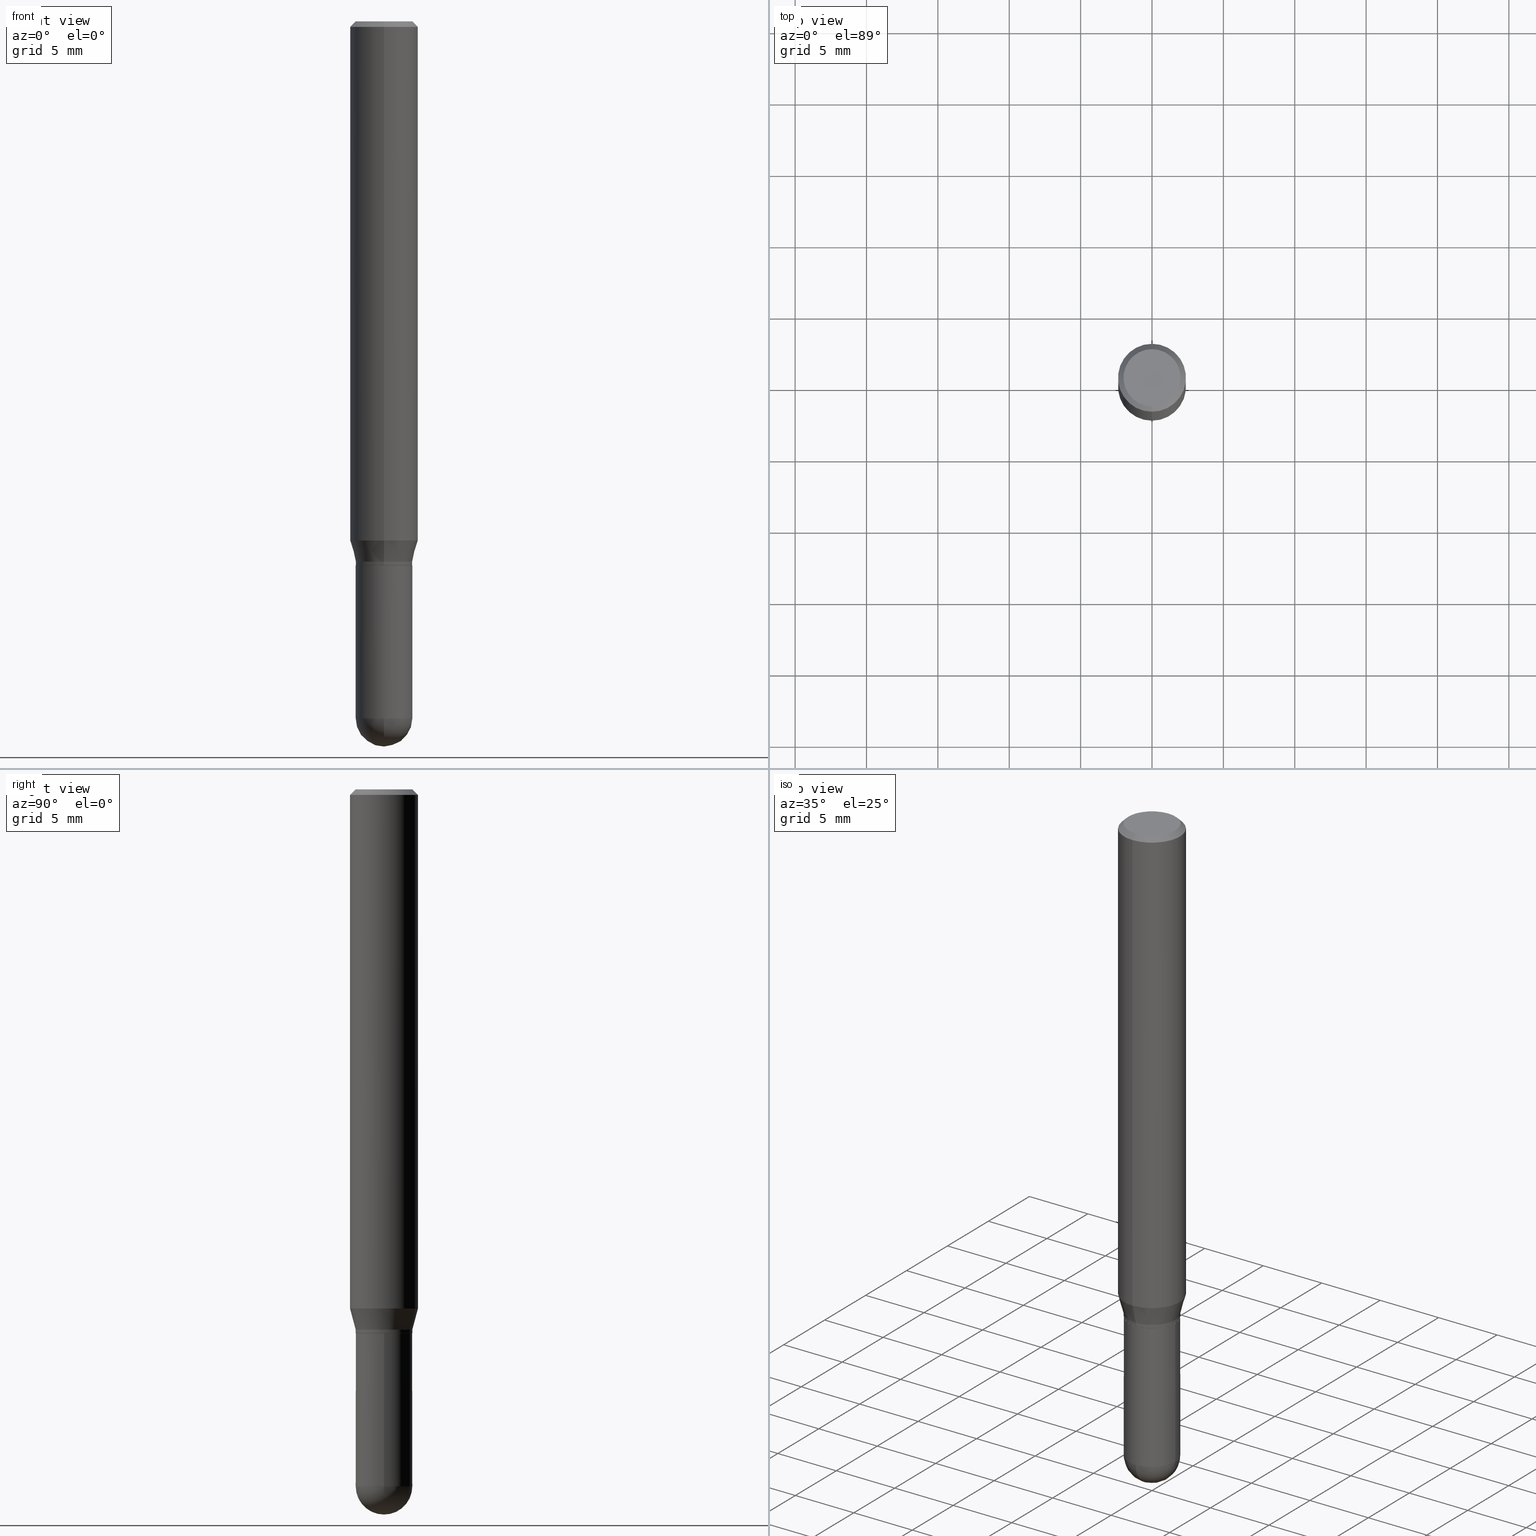
[diagram: canonical four-view strip — front | top / right | iso, engineering-drawing reading convention]
A machine part, canonical four-view strip (front | top / right | iso — engineering-drawing reading convention). The complete STEP part file that produces these views, byte-faithful:
ISO-10303-21;
HEADER;
FILE_DESCRIPTION (( 'STEP AP203' ),
    '1' );
FILE_NAME ('39520.STEP',
    '2024-03-08T12:52:01',
    ( '' ),
    ( '' ),
    'SwSTEP 2.0',
    'SolidWorks 2023',
    '' );
FILE_SCHEMA (( 'CONFIG_CONTROL_DESIGN' ));
ENDSEC;

DATA;
#1 = CIRCLE ( 'NONE', #184, 0.07810000000000000275 ) ;
#2 = AXIS2_PLACEMENT_3D ( 'NONE', #38, #396, #156 ) ;
#3 = EDGE_CURVE ( 'NONE', #70, #72, #26, .T. ) ;
#4 = DIRECTION ( 'NONE',  ( -2.445022562880343100E-29, 3.492120384654201603E-15, 1.000000000000000000 ) ) ;
#5 = ORIENTED_EDGE ( 'NONE', *, *, #109, .F. ) ;
#6 = DIRECTION ( 'NONE',  ( -6.982962677686265922E-15, -1.000000000000000000, 2.913971193241880372E-15 ) ) ;
#7 = VERTEX_POINT ( 'NONE', #489 ) ;
#8 =( LENGTH_UNIT ( ) NAMED_UNIT ( * ) SI_UNIT ( $, .METRE. ) );
#9 = VERTEX_POINT ( 'NONE', #450 ) ;
#10 = EDGE_CURVE ( 'NONE', #356, #72, #51, .T. ) ;
#11 = VECTOR ( 'NONE', #499, 39.37007874015748143 ) ;
#12 = ORIENTED_EDGE ( 'NONE', *, *, #224, .F. ) ;
#13 = MANIFOLD_SOLID_BREP ( 'Body-Move/Copy2[2]', #476 ) ;
#14 = CARTESIAN_POINT ( 'NONE',  ( 4.693267649888723399E-29, -6.719842476623982487E-15, -1.921900000000000164 ) ) ;
#15 = ORIENTED_EDGE ( 'NONE', *, *, #241, .F. ) ;
#16 = CARTESIAN_POINT ( 'NONE',  ( 5.499083108677934443E-16, 0.07875000000000001443, -2.640559158870569216E-16 ) ) ;
#17 = CIRCLE ( 'NONE', #302, 0.07810000000000000275 ) ;
#18 =( CONVERSION_BASED_UNIT ( 'INCH', #358 ) LENGTH_UNIT ( ) NAMED_UNIT ( #484 ) );
#19 = EDGE_CURVE ( 'NONE', #39, #9, #479, .T. ) ;
#20 = CONICAL_SURFACE ( 'NONE', #202, 0.07809999999999964193, 0.2617993877991497409 ) ;
#21 = CARTESIAN_POINT ( 'NONE',  ( 3.666311333039075664E-29, -5.236434516788975357E-15, -1.499500000000000277 ) ) ;
#22 = CARTESIAN_POINT ( 'NONE',  ( -6.546527510330523012E-16, -0.09375000000000500988, -1.431593404861545515 ) ) ;
#23 = CALENDAR_DATE ( 2024, 8, 3 ) ;
#24 = DIRECTION ( 'NONE',  ( 2.445022562880343100E-29, -3.492120384654201603E-15, -1.000000000000000000 ) ) ;
#25 = ADVANCED_FACE ( 'NONE', ( #131 ), #325, .F. ) ;
#26 = CIRCLE ( 'NONE', #293, 0.07809999999999991949 ) ;
#27 = CARTESIAN_POINT ( 'NONE',  ( 5.549338766286741579E-16, 0.07809999999999467368, -1.499500000000000499 ) ) ;
#28 = AXIS2_PLACEMENT_3D ( 'NONE', #108, #106, #345 ) ;
#29 = DIRECTION ( 'NONE',  ( 2.438088387897960049E-29, -3.491481338843145188E-15, -1.000000000000000000 ) ) ;
#30 = PERSON_AND_ORGANIZATION_ROLE ( 'creator' ) ;
#31 = CARTESIAN_POINT ( 'NONE',  ( 3.667533844320509501E-31, -5.238180576981294836E-17, -0.01499999999999997863 ) ) ;
#32 = ADVANCED_FACE ( 'NONE', ( #125 ), #130, .F. ) ;
#33 = CYLINDRICAL_SURFACE ( 'NONE', #120, 0.07809999999999978071 ) ;
#34 = AXIS2_PLACEMENT_3D ( 'NONE', #379, #186, #6 ) ;
#35 = LOCAL_TIME ( 7, 52, 1.000000000000000000, #337 ) ;
#36 = CARTESIAN_POINT ( 'NONE',  ( 0.07810000000000000275, -6.519119381820976762E-15, -1.921900000000000164 ) ) ;
#37 = EDGE_LOOP ( 'NONE', ( #231, #55, #41, #123 ) ) ;
#38 = CARTESIAN_POINT ( 'NONE',  ( 3.667533844320514651E-29, -5.238180576981301616E-15, -1.500000000000000222 ) ) ;
#39 = VERTEX_POINT ( 'NONE', #240 ) ;
#40 = CARTESIAN_POINT ( 'NONE',  ( -5.418779037884175500E-16, -0.07760000000000523424, -1.499999999999999778 ) ) ;
#41 = ORIENTED_EDGE ( 'NONE', *, *, #340, .T. ) ;
#42 = CIRCLE ( 'NONE', #328, 0.07760000000000000231 ) ;
#43 = DIRECTION ( 'NONE',  ( -1.000000000000000000, 7.105427357601001070E-15, -4.926315508542082329E-29 ) ) ;
#44 = ORIENTED_EDGE ( 'NONE', *, *, #203, .F. ) ;
#45 = ORIENTED_EDGE ( 'NONE', *, *, #224, .T. ) ;
#46 = EDGE_CURVE ( 'NONE', #385, #387, #63, .T. ) ;
#47 = DIRECTION ( 'NONE',  ( -2.445022562880343100E-29, 3.492120384654201603E-15, 1.000000000000000000 ) ) ;
#48 = DIRECTION ( 'NONE',  ( -2.445468806185136597E-29, 3.491481338843145583E-15, 1.000000000000000000 ) ) ;
#49 = CONICAL_SURFACE ( 'NONE', #427, 0.09375000000000001388, 0.7853981633974480570 ) ;
#50 =( NAMED_UNIT ( * ) SI_UNIT ( $, .STERADIAN. ) SOLID_ANGLE_UNIT ( ) );
#51 = LINE ( 'NONE', #158, #209 ) ;
#52 = CARTESIAN_POINT ( 'NONE',  ( 3.643083618691710816E-29, -5.203259373134759868E-15, -1.489999999999999991 ) ) ;
#53 = DIRECTION ( 'NONE',  ( -2.445022562880343100E-29, 3.492120384654201603E-15, 1.000000000000000000 ) ) ;
#54 = CARTESIAN_POINT ( 'NONE',  ( 4.887598188011028267E-29, -6.987744923436962171E-15, -2.000000000000000000 ) ) ;
#55 = ORIENTED_EDGE ( 'NONE', *, *, #248, .T. ) ;
#56 = AXIS2_PLACEMENT_3D ( 'NONE', #371, #29, #376 ) ;
#57 = DIRECTION ( 'NONE',  ( -6.982962677686265133E-15, -1.000000000000000000, 3.497884755011864354E-15 ) ) ;
#58 = CARTESIAN_POINT ( 'NONE',  ( -5.453693851272583878E-16, -0.07810000000000484610, -1.489999999999999769 ) ) ;
#59 = ADVANCED_FACE ( 'NONE', ( #401 ), #448, .T. ) ;
#60 = EDGE_CURVE ( 'NONE', #70, #385, #91, .T. ) ;
#61 = DATE_TIME_ROLE ( 'classification_date' ) ;
#62 = DIRECTION ( 'NONE',  ( 6.982962677686265922E-15, 1.000000000000000000, -3.483106191921935160E-15 ) ) ;
#63 = CIRCLE ( 'NONE', #268, 0.07809999999999964193 ) ;
#64 = DIRECTION ( 'NONE',  ( -2.445022562880343100E-29, 3.492120384654201603E-15, 1.000000000000000000 ) ) ;
#65 = ORGANIZATION ( 'UNSPECIFIED', 'UNSPECIFIED', '' ) ;
#66 = ADVANCED_FACE ( 'NONE', ( #330 ), #323, .T. ) ;
#67 = CARTESIAN_POINT ( 'NONE',  ( -5.549338766285910317E-16, -0.07810000000000670572, -1.921899999999999720 ) ) ;
#68 = DIRECTION ( 'NONE',  ( -2.445022562880343100E-29, 3.492120384654201603E-15, 1.000000000000000000 ) ) ;
#69 = CARTESIAN_POINT ( 'NONE',  ( -6.431716872910806895E-16, -0.09375000000000005551, -0.01499999999999965250 ) ) ;
#70 = VERTEX_POINT ( 'NONE', #27 ) ;
#71 = CARTESIAN_POINT ( 'NONE',  ( 3.643083618691710816E-29, -5.203259373134759868E-15, -1.489999999999999991 ) ) ;
#72 = VERTEX_POINT ( 'NONE', #334 ) ;
#73 = EDGE_CURVE ( 'NONE', #400, #7, #494, .T. ) ;
#74 = DIRECTION ( 'NONE',  ( 1.000000000000000000, -6.982962677686266711E-15, 0.000000000000000000 ) ) ;
#75 = ORIENTED_EDGE ( 'NONE', *, *, #414, .T. ) ;
#76 = DIRECTION ( 'NONE',  ( -2.445022562880343100E-29, 3.492120384654201603E-15, 1.000000000000000000 ) ) ;
#77 = EDGE_LOOP ( 'NONE', ( #45, #271, #438, #459 ) ) ;
#78 = LOCAL_TIME ( 7, 52, 1.000000000000000000, #416 ) ;
#79 = CC_DESIGN_PERSON_AND_ORGANIZATION_ASSIGNMENT ( #370, #295, ( #111 ) ) ;
#80 = ORIENTED_EDGE ( 'NONE', *, *, #296, .T. ) ;
#81 = ADVANCED_FACE ( 'NONE', ( #182 ), #373, .F. ) ;
#82 = APPLICATION_PROTOCOL_DEFINITION ( 'international standard', 'config_control_design', 1994, #420 ) ;
#83 = DIRECTION ( 'NONE',  ( 6.982962677686265922E-15, 1.000000000000000000, -3.492120384654201603E-15 ) ) ;
#84 = DIRECTION ( 'NONE',  ( 1.000000000000000000, 0.000000000000000000, 0.000000000000000000 ) ) ;
#85 = ORIENTED_EDGE ( 'NONE', *, *, #148, .T. ) ;
#86 = AXIS2_PLACEMENT_3D ( 'NONE', #230, #68, #193 ) ;
#87 = DIRECTION ( 'NONE',  ( -1.000000000000000000, 6.982962677686265922E-15, -4.883557194083112901E-29 ) ) ;
#88 = DIRECTION ( 'NONE',  ( -2.445022562880343100E-29, 3.492120384654201603E-15, 1.000000000000000000 ) ) ;
#89 = EDGE_CURVE ( 'NONE', #354, #347, #299, .T. ) ;
#90 = FACE_OUTER_BOUND ( 'NONE', #350, .T. ) ;
#91 = LINE ( 'NONE', #250, #310 ) ;
#92 = CALENDAR_DATE ( 2024, 8, 3 ) ;
#93 = CARTESIAN_POINT ( 'NONE',  ( 3.667533844320514090E-29, -5.238180576981300827E-15, -1.499999999999999778 ) ) ;
#94 = ADVANCED_FACE ( 'NONE', ( #452 ), #49, .T. ) ;
#95 = DIRECTION ( 'NONE',  ( -6.982962677686265133E-15, -1.000000000000000000, 3.497884755011864354E-15 ) ) ;
#96 = PERSON_AND_ORGANIZATION_ROLE ( 'classification_officer' ) ;
#97 = LINE ( 'NONE', #58, #443 ) ;
#98 = CALENDAR_DATE ( 2024, 8, 3 ) ;
#99 = CARTESIAN_POINT ( 'NONE',  ( 3.667533844320509501E-31, -5.238180576981294836E-17, -0.01499999999999997863 ) ) ;
#100 = PERSON_AND_ORGANIZATION ( #190, #65 ) ;
#101 = CIRCLE ( 'NONE', #368, 0.07809999999999991949 ) ;
#102 = DIRECTION ( 'NONE',  ( 1.000000000000000000, -6.982962677686266711E-15, 0.000000000000000000 ) ) ;
#103 = CIRCLE ( 'NONE', #369, 0.07810000000000000275 ) ;
#104 = EDGE_CURVE ( 'NONE', #72, #387, #462, .T. ) ;
#105 = DIRECTION ( 'NONE',  ( 2.445022562880343100E-29, -3.492120384654201603E-15, -1.000000000000000000 ) ) ;
#106 = DIRECTION ( 'NONE',  ( -2.445022562880343100E-29, 3.492120384654201603E-15, 1.000000000000000000 ) ) ;
#107 = ORIENTED_EDGE ( 'NONE', *, *, #203, .T. ) ;
#108 = CARTESIAN_POINT ( 'NONE',  ( 0.000000000000000000, 0.000000000000000000, 0.000000000000000000 ) ) ;
#109 = EDGE_CURVE ( 'NONE', #385, #39, #144, .T. ) ;
#110 = EDGE_LOOP ( 'NONE', ( #512, #475, #289, #44 ) ) ;
#111 = PRODUCT_DEFINITION_FORMATION_WITH_SPECIFIED_SOURCE ( 'ANY', '', #134, .NOT_KNOWN. ) ;
#112 = DIRECTION ( 'NONE',  ( -4.851104656540962697E-15, -0.7071067811865497932, -0.7071067811865452413 ) ) ;
#113 = EDGE_LOOP ( 'NONE', ( #75, #491 ) ) ;
#114 = CARTESIAN_POINT ( 'NONE',  ( 4.693267649888723399E-29, -6.719842476623982487E-15, -1.921900000000000164 ) ) ;
#115 = VERTEX_POINT ( 'NONE', #22 ) ;
#116 = EDGE_CURVE ( 'NONE', #483, #152, #201, .T. ) ;
#117 = FACE_OUTER_BOUND ( 'NONE', #359, .T. ) ;
#118 = ORIENTED_EDGE ( 'NONE', *, *, #279, .T. ) ;
#119 = VECTOR ( 'NONE', #219, 39.37007874015748143 ) ;
#120 = AXIS2_PLACEMENT_3D ( 'NONE', #505, #386, #146 ) ;
#121 = DIRECTION ( 'NONE',  ( -6.982962677686265922E-15, -1.000000000000000000, 3.492120384654201603E-15 ) ) ;
#122 = PERSON_AND_ORGANIZATION_ROLE ( 'design_owner' ) ;
#123 = ORIENTED_EDGE ( 'NONE', *, *, #132, .F. ) ;
#124 = DIRECTION ( 'NONE',  ( -2.445022562880343100E-29, 3.492120384654201603E-15, 1.000000000000000000 ) ) ;
#125 = FACE_OUTER_BOUND ( 'NONE', #364, .T. ) ;
#126 = PRODUCT_DEFINITION ( 'UNKNOWN', '', #111, #208 ) ;
#127 = CIRCLE ( 'NONE', #253, 0.09375000000000001388 ) ;
#128 = LOCAL_TIME ( 7, 52, 1.000000000000000000, #449 ) ;
#129 = DIRECTION ( 'NONE',  ( -6.982962677686265922E-15, -1.000000000000000000, 3.520422672247761757E-15 ) ) ;
#130 = PLANE ( 'NONE',  #135 ) ;
#131 = FACE_OUTER_BOUND ( 'NONE', #362, .T. ) ;
#132 = EDGE_CURVE ( 'NONE', #152, #9, #304, .T. ) ;
#133 = DIRECTION ( 'NONE',  ( -1.807323732225326589E-15, -0.2588190451025176864, 0.9659258262890690894 ) ) ;
#134 = PRODUCT ( '39520', '39520', '', ( #280 ) ) ;
#135 = AXIS2_PLACEMENT_3D ( 'NONE', #93, #327, #121 ) ;
#136 = AXIS2_PLACEMENT_3D ( 'NONE', #423, #266, #429 ) ;
#137 = DATE_AND_TIME ( #92, #78 ) ;
#138 = CARTESIAN_POINT ( 'NONE',  ( 3.667533844320509501E-31, -5.238180576981294836E-17, -0.01499999999999997863 ) ) ;
#139 = DATE_TIME_ROLE ( 'creation_date' ) ;
#140 = CARTESIAN_POINT ( 'NONE',  ( 3.668203209277704895E-29, -5.237222008264718177E-15, -1.500000000000000222 ) ) ;
#141 = SHAPE_DEFINITION_REPRESENTATION ( #375, #351 ) ;
#142 = CARTESIAN_POINT ( 'NONE',  ( 5.549338766286719885E-16, 0.07809999999999443776, -1.490000000000000213 ) ) ;
#143 = CIRCLE ( 'NONE', #366, 0.07810000000000000275 ) ;
#144 = LINE ( 'NONE', #142, #335 ) ;
#145 = LOCAL_TIME ( 7, 52, 1.000000000000000000, #451 ) ;
#146 = DIRECTION ( 'NONE',  ( -6.982962677686265922E-15, -1.000000000000000000, 3.492120384654201209E-15 ) ) ;
#147 = ORIENTED_EDGE ( 'NONE', *, *, #480, .F. ) ;
#148 = EDGE_CURVE ( 'NONE', #354, #157, #468, .T. ) ;
#149 = DIRECTION ( 'NONE',  ( 1.000000000000000000, -6.982962677686266711E-15, 0.000000000000000000 ) ) ;
#150 = EDGE_LOOP ( 'NONE', ( #5, #194, #397, #15 ) ) ;
#151 = FACE_OUTER_BOUND ( 'NONE', #110, .T. ) ;
#152 = VERTEX_POINT ( 'NONE', #255 ) ;
#153 = CONICAL_SURFACE ( 'NONE', #287, 0.07760000000000000231, 0.7853981633974653764 ) ;
#154 = CARTESIAN_POINT ( 'NONE',  ( 6.105338457019004099E-16, 0.07809999999999443776, -1.490000000000000213 ) ) ;
#155 = VERTEX_POINT ( 'NONE', #421 ) ;
#156 = DIRECTION ( 'NONE',  ( -6.982962677686265922E-15, -1.000000000000000000, 3.520422672247761757E-15 ) ) ;
#157 = VERTEX_POINT ( 'NONE', #67 ) ;
#158 = CARTESIAN_POINT ( 'NONE',  ( -5.418779037884175500E-16, -0.07760000000000523424, -1.499999999999999778 ) ) ;
#159 = CIRCLE ( 'NONE', #319, 0.09375000000000001388 ) ;
#160 = AXIS2_PLACEMENT_3D ( 'NONE', #114, #43, #306 ) ;
#161 = APPLICATION_PROTOCOL_DEFINITION ( 'international standard', 'config_control_design', 1994, #205 ) ;
#162 = ORIENTED_EDGE ( 'NONE', *, *, #507, .T. ) ;
#163 = CC_DESIGN_DATE_AND_TIME_ASSIGNMENT ( #290, #61, ( #254 ) ) ;
#164 = CYLINDRICAL_SURFACE ( 'NONE', #394, 0.07809999999999978071 ) ;
#165 = DIRECTION ( 'NONE',  ( -4.937700262164631661E-15, -0.7071067811865571207, 0.7071067811865379138 ) ) ;
#166 = ORIENTED_EDGE ( 'NONE', *, *, #216, .F. ) ;
#167 = AXIS2_PLACEMENT_3D ( 'NONE', #215, #338, #497 ) ;
#168 = CIRCLE ( 'NONE', #495, 0.07809999999999996112 ) ;
#169 = CARTESIAN_POINT ( 'NONE',  ( 0.000000000000000000, 0.000000000000000000, 0.000000000000000000 ) ) ;
#170 = CARTESIAN_POINT ( 'NONE',  ( 0.000000000000000000, 0.000000000000000000, 0.000000000000000000 ) ) ;
#171 = EDGE_CURVE ( 'NONE', #347, #7, #1, .T. ) ;
#172 = DIRECTION ( 'NONE',  ( -6.982962677686265922E-15, -1.000000000000000000, 3.520422672247761757E-15 ) ) ;
#173 = ADVANCED_FACE ( 'NONE', ( #383 ), #261, .T. ) ;
#174 = DIRECTION ( 'NONE',  ( -6.982962677686265922E-15, -1.000000000000000000, 3.483106191921935160E-15 ) ) ;
#175 = CLOSED_SHELL ( 'NONE', ( #66, #463, #81, #442, #59 ) ) ;
#176 = APPROVAL_ROLE ( '' ) ;
#177 = CARTESIAN_POINT ( 'NONE',  ( 4.699946498607214373E-29, -6.710277985122641264E-15, -1.921900000000000164 ) ) ;
#178 = EDGE_CURVE ( 'NONE', #432, #356, #352, .T. ) ;
#179 = APPROVAL_STATUS ( 'not_yet_approved' ) ;
#180 = CARTESIAN_POINT ( 'NONE',  ( -5.453693851272958587E-16, -0.07809999999999978071, 2.727346020414923541E-16 ) ) ;
#181 = APPROVAL_STATUS ( 'not_yet_approved' ) ;
#182 = FACE_OUTER_BOUND ( 'NONE', #113, .T. ) ;
#183 = VERTEX_POINT ( 'NONE', #493 ) ;
#184 = AXIS2_PLACEMENT_3D ( 'NONE', #140, #222, #501 ) ;
#185 = APPROVAL_PERSON_ORGANIZATION ( #239, #482, #361 ) ;
#186 = DIRECTION ( 'NONE',  ( -2.445022562880343100E-29, 3.492120384654201603E-15, 1.000000000000000000 ) ) ;
#187 = EDGE_CURVE ( 'NONE', #387, #115, #97, .T. ) ;
#188 = CARTESIAN_POINT ( 'NONE',  ( 3.668203209277704895E-29, -5.237222008264718177E-15, -1.500000000000000222 ) ) ;
#189 = ORIENTED_EDGE ( 'NONE', *, *, #178, .F. ) ;
#190 = PERSON ( 'UNSPECIFIED', 'UNSPECIFIED', 'UNSPECIFIED', ('UNSPECIFIED'), ('UNSPECIFIED'), ('UNSPECIFIED') ) ;
#191 = CARTESIAN_POINT ( 'NONE',  ( -0.07810000000000000275, -5.418816120065042244E-15, -1.921900000000000164 ) ) ;
#192 = ORIENTED_EDGE ( 'NONE', *, *, #89, .F. ) ;
#193 = DIRECTION ( 'NONE',  ( -6.982962677686265922E-15, -1.000000000000000000, 3.492120384654201603E-15 ) ) ;
#194 = ORIENTED_EDGE ( 'NONE', *, *, #46, .T. ) ;
#195 = LOCAL_TIME ( 7, 52, 1.000000000000000000, #455 ) ;
#196 = CYLINDRICAL_SURFACE ( 'NONE', #28, 0.09375000000000001388 ) ;
#197 = ORIENTED_EDGE ( 'NONE', *, *, #296, .F. ) ;
#198 = ORIENTED_EDGE ( 'NONE', *, *, #279, .F. ) ;
#199 = SPHERICAL_SURFACE ( 'NONE', #461, 0.07809999999999996112 ) ;
#200 = DIRECTION ( 'NONE',  ( 1.000000000000000000, -6.982962677686266711E-15, 4.876176775795935232E-29 ) ) ;
#201 = CIRCLE ( 'NONE', #378, 0.07875000000000001443 ) ;
#202 = AXIS2_PLACEMENT_3D ( 'NONE', #485, #407, #322 ) ;
#203 = EDGE_CURVE ( 'NONE', #9, #183, #127, .T. ) ;
#204 = ORIENTED_EDGE ( 'NONE', *, *, #178, .T. ) ;
#205 = APPLICATION_CONTEXT ( 'configuration controlled 3d designs of mechanical parts and assemblies' ) ;
#206 = ORIENTED_EDGE ( 'NONE', *, *, #248, .F. ) ;
#207 = EDGE_LOOP ( 'NONE', ( #192, #85, #467, #425, #435 ) ) ;
#208 = DESIGN_CONTEXT ( 'detailed design', #420, 'design' ) ;
#209 = VECTOR ( 'NONE', #165, 39.37007874015748143 ) ;
#210 = AXIS2_PLACEMENT_3D ( 'NONE', #71, #270, #391 ) ;
#211 = CC_DESIGN_SECURITY_CLASSIFICATION ( #254, ( #111 ) ) ;
#212 = CARTESIAN_POINT ( 'NONE',  ( -0.07810000000000000275, 5.549338766286382647E-16, -3.841688305489081275E-30 ) ) ;
#213 = CARTESIAN_POINT ( 'NONE',  ( 6.546527510330878985E-16, 0.09374999999999995837, -0.01500000000000030476 ) ) ;
#214 = PERSON_AND_ORGANIZATION ( #190, #65 ) ;
#215 = CARTESIAN_POINT ( 'NONE',  ( 4.699946498607214373E-29, -6.710277985122641264E-15, -1.921900000000000164 ) ) ;
#216 = EDGE_CURVE ( 'NONE', #356, #432, #42, .T. ) ;
#217 = AXIS2_PLACEMENT_3D ( 'NONE', #170, #48, #200 ) ;
#218 = CIRCLE ( 'NONE', #160, 0.07809999999999996112 ) ;
#219 = DIRECTION ( 'NONE',  ( -2.445022562880342820E-29, 3.492120384654201603E-15, 1.000000000000000000 ) ) ;
#220 = ORIENTED_EDGE ( 'NONE', *, *, #232, .F. ) ;
#221 = PERSON_AND_ORGANIZATION ( #190, #65 ) ;
#222 = DIRECTION ( 'NONE',  ( -2.445468806185136597E-29, 3.491481338843145583E-15, 1.000000000000000000 ) ) ;
#223 = DIRECTION ( 'NONE',  ( -2.445468806185136597E-29, 3.491481338843145583E-15, 1.000000000000000000 ) ) ;
#224 = EDGE_CURVE ( 'NONE', #72, #70, #101, .T. ) ;
#225 = AXIS2_PLACEMENT_3D ( 'NONE', #16, #486, #83 ) ;
#226 = CARTESIAN_POINT ( 'NONE',  ( -0.07810000000000000275, -5.418816120065042244E-15, -1.500000000000000222 ) ) ;
#227 = ORIENTED_EDGE ( 'NONE', *, *, #10, .T. ) ;
#228 = DIRECTION ( 'NONE',  ( -2.445022562880343100E-29, 3.492120384654201603E-15, 1.000000000000000000 ) ) ;
#229 = EDGE_LOOP ( 'NONE', ( #313, #390, #197, #220 ) ) ;
#230 = CARTESIAN_POINT ( 'NONE',  ( 0.000000000000000000, 0.000000000000000000, 0.000000000000000000 ) ) ;
#231 = ORIENTED_EDGE ( 'NONE', *, *, #116, .F. ) ;
#232 = EDGE_CURVE ( 'NONE', #157, #400, #393, .T. ) ;
#233 = CARTESIAN_POINT ( 'NONE',  ( 3.500278175757173363E-29, -4.999296511653519155E-15, -1.431593404861545737 ) ) ;
#234 = CIRCLE ( 'NONE', #34, 0.09375000000000001388 ) ;
#235 = ORIENTED_EDGE ( 'NONE', *, *, #305, .F. ) ;
#236 = AXIS2_PLACEMENT_3D ( 'NONE', #478, #326, #324 ) ;
#237 = CARTESIAN_POINT ( 'NONE',  ( -6.546527510330875041E-16, -0.09375000000000001388, 3.273862860613314496E-16 ) ) ;
#238 = ORIENTED_EDGE ( 'NONE', *, *, #3, .T. ) ;
#239 = PERSON_AND_ORGANIZATION ( #190, #65 ) ;
#240 = CARTESIAN_POINT ( 'NONE',  ( 6.661338147751288313E-16, 0.09374999999999500400, -1.431593404861545960 ) ) ;
#241 = EDGE_CURVE ( 'NONE', #39, #115, #234, .T. ) ;
#242 = CARTESIAN_POINT ( 'NONE',  ( 5.531575197892741031E-16, 0.07759999999999475651, -1.500000000000000444 ) ) ;
#243 = ORIENTED_EDGE ( 'NONE', *, *, #10, .F. ) ;
#244 = AXIS2_PLACEMENT_3D ( 'NONE', #177, #264, #102 ) ;
#245 = CONICAL_SURFACE ( 'NONE', #2, 0.07760000000000000231, 0.7853981633974653764 ) ;
#246 = DIRECTION ( 'NONE',  ( -6.982962677686265922E-15, -1.000000000000000000, 3.497884755011876582E-15 ) ) ;
#247 = ORIENTED_EDGE ( 'NONE', *, *, #372, .T. ) ;
#248 = EDGE_CURVE ( 'NONE', #483, #183, #353, .T. ) ;
#249 = FACE_OUTER_BOUND ( 'NONE', #150, .T. ) ;
#250 = CARTESIAN_POINT ( 'NONE',  ( 5.549338766286364898E-16, 0.07809999999999978071, -2.727346020414923541E-16 ) ) ;
#251 = DATE_AND_TIME ( #23, #145 ) ;
#252 = EDGE_LOOP ( 'NONE', ( #503, #204, #227, #465 ) ) ;
#253 = AXIS2_PLACEMENT_3D ( 'NONE', #31, #64, #174 ) ;
#254 = SECURITY_CLASSIFICATION ( '', '', #500 ) ;
#255 = CARTESIAN_POINT ( 'NONE',  ( 6.022805309504406221E-16, 0.07875000000000001443, -2.531073514825954590E-16 ) ) ;
#256 = DATE_AND_TIME ( #98, #128 ) ;
#257 = DIRECTION ( 'NONE',  ( -2.445468806185136877E-29, 3.491481338843145188E-15, 1.000000000000000000 ) ) ;
#258 = CC_DESIGN_PERSON_AND_ORGANIZATION_ASSIGNMENT ( #382, #259, ( #111 ) ) ;
#259 = PERSON_AND_ORGANIZATION_ROLE ( 'design_supplier' ) ;
#260 = DIRECTION ( 'NONE',  ( -2.445022562880343100E-29, 3.492120384654201603E-15, 1.000000000000000000 ) ) ;
#261 = CONICAL_SURFACE ( 'NONE', #286, 0.09375000000000001388, 0.7853981633974480570 ) ;
#262 = VECTOR ( 'NONE', #464, 39.37007874015748143 ) ;
#263 = PERSON_AND_ORGANIZATION ( #190, #65 ) ;
#264 = DIRECTION ( 'NONE',  ( -2.445468806185136597E-29, 3.491481338843145583E-15, 1.000000000000000000 ) ) ;
#265 = DIRECTION ( 'NONE',  ( -2.445022562880343100E-29, 3.492120384654201603E-15, 1.000000000000000000 ) ) ;
#266 = DIRECTION ( 'NONE',  ( -2.445022562880343100E-29, 3.492120384654201603E-15, 1.000000000000000000 ) ) ;
#267 = ORIENTED_EDGE ( 'NONE', *, *, #73, .F. ) ;
#268 = AXIS2_PLACEMENT_3D ( 'NONE', #446, #88, #412 ) ;
#269 = CIRCLE ( 'NONE', #136, 0.09375000000000001388 ) ;
#270 = DIRECTION ( 'NONE',  ( -2.445022562880343100E-29, 3.492120384654201603E-15, 1.000000000000000000 ) ) ;
#271 = ORIENTED_EDGE ( 'NONE', *, *, #60, .T. ) ;
#272 = DIRECTION ( 'NONE',  ( -2.445468806185136597E-29, 3.491481338843145583E-15, 1.000000000000000000 ) ) ;
#273 = ORIENTED_EDGE ( 'NONE', *, *, #340, .F. ) ;
#274 = CARTESIAN_POINT ( 'NONE',  ( -5.353897400011380051E-46, 7.646740987903862261E-32, 2.189712880892295595E-17 ) ) ;
#275 = EDGE_LOOP ( 'NONE', ( #118, #377, #367, #267, #80 ) ) ;
#276 = AXIS2_PLACEMENT_3D ( 'NONE', #283, #441, #339 ) ;
#277 = FACE_OUTER_BOUND ( 'NONE', #252, .T. ) ;
#278 = ORIENTED_EDGE ( 'NONE', *, *, #132, .T. ) ;
#279 = EDGE_CURVE ( 'NONE', #155, #354, #17, .T. ) ;
#280 = MECHANICAL_CONTEXT ( 'NONE', #205, 'mechanical' ) ;
#281 = EDGE_LOOP ( 'NONE', ( #162, #380, #235, #406 ) ) ;
#282 = APPROVAL_STATUS ( 'not_yet_approved' ) ;
#283 = CARTESIAN_POINT ( 'NONE',  ( 0.000000000000000000, 0.000000000000000000, 0.000000000000000000 ) ) ;
#284 = DIRECTION ( 'NONE',  ( -2.445022562880342820E-29, 3.492120384654201603E-15, 1.000000000000000000 ) ) ;
#285 = DIRECTION ( 'NONE',  ( -2.445022562880342820E-29, 3.492120384654201603E-15, 1.000000000000000000 ) ) ;
#286 = AXIS2_PLACEMENT_3D ( 'NONE', #99, #24, #454 ) ;
#287 = AXIS2_PLACEMENT_3D ( 'NONE', #466, #228, #129 ) ;
#288 = DIRECTION ( 'NONE',  ( 6.982962677686265922E-15, 1.000000000000000000, -3.497884755011862382E-15 ) ) ;
#289 = ORIENTED_EDGE ( 'NONE', *, *, #480, .T. ) ;
#290 = DATE_AND_TIME ( #418, #35 ) ;
#291 = CARTESIAN_POINT ( 'NONE',  ( 6.661338147750938256E-16, 0.09375000000000001388, -3.273862860613314496E-16 ) ) ;
#292 = CARTESIAN_POINT ( 'NONE',  ( 3.666311333039075664E-29, -5.236434516788975357E-15, -1.499500000000000277 ) ) ;
#293 = AXIS2_PLACEMENT_3D ( 'NONE', #21, #53, #57 ) ;
#294 = APPROVAL_PERSON_ORGANIZATION ( #214, #405, #176 ) ;
#295 = PERSON_AND_ORGANIZATION_ROLE ( 'creator' ) ;
#296 = EDGE_CURVE ( 'NONE', #400, #155, #143, .T. ) ;
#297 = DIRECTION ( 'NONE',  ( 1.839019923739596765E-15, 0.2588190451025244587, 0.9659258262890673130 ) ) ;
#298 = APPROVAL_ROLE ( '' ) ;
#299 = LINE ( 'NONE', #212, #411 ) ;
#300 = CARTESIAN_POINT ( 'NONE',  ( -5.353897400011380051E-46, 7.646740987903862261E-32, 2.189712880892295595E-17 ) ) ;
#301 = APPROVAL ( #181, 'UNSPECIFIED' ) ;
#302 = AXIS2_PLACEMENT_3D ( 'NONE', #349, #272, #74 ) ;
#303 = CC_DESIGN_APPROVAL ( #482, ( #126 ) ) ;
#304 = LINE ( 'NONE', #213, #402 ) ;
#305 = EDGE_CURVE ( 'NONE', #115, #39, #159, .T. ) ;
#306 = DIRECTION ( 'NONE',  ( -7.105427357601000281E-15, -1.000000000000000000, 0.000000000000000000 ) ) ;
#307 = ORIENTED_EDGE ( 'NONE', *, *, #216, .T. ) ;
#308 = FACE_OUTER_BOUND ( 'NONE', #510, .T. ) ;
#309 = ORIENTED_EDGE ( 'NONE', *, *, #19, .T. ) ;
#310 = VECTOR ( 'NONE', #360, 39.37007874015748143 ) ;
#311 = CYLINDRICAL_SURFACE ( 'NONE', #86, 0.09375000000000001388 ) ;
#312 = PRODUCT_RELATED_PRODUCT_CATEGORY ( 'detail', '', ( #134 ) ) ;
#313 = ORIENTED_EDGE ( 'NONE', *, *, #372, .F. ) ;
#314 = CARTESIAN_POINT ( 'NONE',  ( -5.453693851272583878E-16, -0.07810000000000484610, -1.489999999999999769 ) ) ;
#315 = ORIENTED_EDGE ( 'NONE', *, *, #148, .F. ) ;
#316 = FACE_OUTER_BOUND ( 'NONE', #281, .T. ) ;
#317 = ORIENTED_EDGE ( 'NONE', *, *, #332, .T. ) ;
#318 = EDGE_CURVE ( 'NONE', #506, #155, #168, .T. ) ;
#319 = AXIS2_PLACEMENT_3D ( 'NONE', #233, #4, #434 ) ;
#320 = DIRECTION ( 'NONE',  ( 0.000000000000000000, 0.000000000000000000, 1.000000000000000000 ) ) ;
#321 = ORIENTED_EDGE ( 'NONE', *, *, #60, .F. ) ;
#322 = DIRECTION ( 'NONE',  ( -6.982962677686265922E-15, -1.000000000000000000, 3.497884755011876582E-15 ) ) ;
#323 = CYLINDRICAL_SURFACE ( 'NONE', #276, 0.07810000000000000275 ) ;
#324 = DIRECTION ( 'NONE',  ( 6.982962677686265922E-15, 1.000000000000000000, -3.497884755011862382E-15 ) ) ;
#325 = PLANE ( 'NONE',  #225 ) ;
#326 = DIRECTION ( 'NONE',  ( -1.000000000000000000, 6.982962677686265922E-15, -4.883557194083112901E-29 ) ) ;
#327 = DIRECTION ( 'NONE',  ( -2.445022562880342820E-29, 3.492120384654201603E-15, 1.000000000000000000 ) ) ;
#328 = AXIS2_PLACEMENT_3D ( 'NONE', #417, #260, #422 ) ;
#329 =( NAMED_UNIT ( * ) PLANE_ANGLE_UNIT ( ) SI_UNIT ( $, .RADIAN. ) );
#330 = FACE_OUTER_BOUND ( 'NONE', #275, .T. ) ;
#331 = CARTESIAN_POINT ( 'NONE',  ( 0.07810000000000000275, -5.453693851272974364E-16, 3.808294061896625703E-30 ) ) ;
#332 = EDGE_CURVE ( 'NONE', #432, #70, #470, .T. ) ;
#333 = ADVANCED_FACE ( 'NONE', ( #151 ), #196, .T. ) ;
#334 = CARTESIAN_POINT ( 'NONE',  ( -5.453693851272600641E-16, -0.07810000000000515141, -1.499500000000000055 ) ) ;
#335 = VECTOR ( 'NONE', #297, 39.37007874015748143 ) ;
#336 = AXIS2_PLACEMENT_3D ( 'NONE', #399, #320, #84 ) ;
#337 = COORDINATED_UNIVERSAL_TIME_OFFSET ( 5, 0, .BEHIND. ) ;
#338 = DIRECTION ( 'NONE',  ( -2.445468806185136597E-29, 3.491481338843145583E-15, 1.000000000000000000 ) ) ;
#339 = DIRECTION ( 'NONE',  ( 1.000000000000000000, -6.982962677686266711E-15, 4.876176775795935232E-29 ) ) ;
#340 = EDGE_CURVE ( 'NONE', #183, #9, #269, .T. ) ;
#341 = DATE_AND_TIME ( #498, #195 ) ;
#342 = DIRECTION ( 'NONE',  ( -2.445022562880343100E-29, 3.492120384654201603E-15, 1.000000000000000000 ) ) ;
#343 = ORIENTED_EDGE ( 'NONE', *, *, #104, .T. ) ;
#344 = CIRCLE ( 'NONE', #504, 0.07875000000000001443 ) ;
#345 = DIRECTION ( 'NONE',  ( -6.982962677686265922E-15, -1.000000000000000000, 3.492120384654201603E-15 ) ) ;
#346 = CARTESIAN_POINT ( 'NONE',  ( 4.693267649888723399E-29, -6.719842476623982487E-15, -1.921900000000000164 ) ) ;
#347 = VERTEX_POINT ( 'NONE', #226 ) ;
#348 = ADVANCED_FACE ( 'NONE', ( #277 ), #245, .T. ) ;
#349 = CARTESIAN_POINT ( 'NONE',  ( 4.699946498607214373E-29, -6.710277985122641264E-15, -1.921900000000000164 ) ) ;
#350 = EDGE_LOOP ( 'NONE', ( #404, #247, #315, #198 ) ) ;
#351 = ADVANCED_BREP_SHAPE_REPRESENTATION ( '39520', ( #509, #13, #336 ), #445 ) ;
#352 = CIRCLE ( 'NONE', #477, 0.07760000000000000231 ) ;
#353 = LINE ( 'NONE', #69, #460 ) ;
#354 = VERTEX_POINT ( 'NONE', #191 ) ;
#355 = DIRECTION ( 'NONE',  ( -6.982962677686264344E-15, -1.000000000000000000, 3.492120384654201209E-15 ) ) ;
#356 = VERTEX_POINT ( 'NONE', #40 ) ;
#357 = ADVANCED_FACE ( 'NONE', ( #117 ), #311, .T. ) ;
#358 = LENGTH_MEASURE_WITH_UNIT ( LENGTH_MEASURE( 0.02539999999999999897 ), #8 );
#359 = EDGE_LOOP ( 'NONE', ( #392, #309, #273, #147 ) ) ;
#360 = DIRECTION ( 'NONE',  ( -2.445022562880342820E-29, 3.492120384654201603E-15, 1.000000000000000000 ) ) ;
#361 = APPROVAL_ROLE ( '' ) ;
#362 = EDGE_LOOP ( 'NONE', ( #471, #408 ) ) ;
#363 = CARTESIAN_POINT ( 'NONE',  ( -5.917179523077944868E-16, -0.07875000000000001443, 2.969016091004413093E-16 ) ) ;
#364 = EDGE_LOOP ( 'NONE', ( #166, #189 ) ) ;
#365 = FACE_OUTER_BOUND ( 'NONE', #229, .T. ) ;
#366 = AXIS2_PLACEMENT_3D ( 'NONE', #472, #223, #384 ) ;
#367 = ORIENTED_EDGE ( 'NONE', *, *, #414, .F. ) ;
#368 = AXIS2_PLACEMENT_3D ( 'NONE', #292, #342, #95 ) ;
#369 = AXIS2_PLACEMENT_3D ( 'NONE', #188, #508, #149 ) ;
#370 = PERSON_AND_ORGANIZATION ( #190, #65 ) ;
#371 = CARTESIAN_POINT ( 'NONE',  ( 5.453693851273340198E-16, 0.07809999999999475695, -1.500000000000000222 ) ) ;
#372 = EDGE_CURVE ( 'NONE', #506, #157, #218, .T. ) ;
#373 = PLANE ( 'NONE',  #56 ) ;
#374 = APPROVAL_DATE_TIME ( #251, #405 ) ;
#375 = PRODUCT_DEFINITION_SHAPE ( 'NONE', 'NONE',  #126 ) ;
#376 = DIRECTION ( 'NONE',  ( -1.000000000000000000, 6.982962677686265922E-15, -4.876176775795935793E-29 ) ) ;
#377 = ORIENTED_EDGE ( 'NONE', *, *, #89, .T. ) ;
#378 = AXIS2_PLACEMENT_3D ( 'NONE', #300, #265, #458 ) ;
#379 = CARTESIAN_POINT ( 'NONE',  ( 3.500278175757173363E-29, -4.999296511653519155E-15, -1.431593404861545737 ) ) ;
#380 = ORIENTED_EDGE ( 'NONE', *, *, #109, .T. ) ;
#381 = ADVANCED_FACE ( 'NONE', ( #316 ), #428, .T. ) ;
#382 = PERSON_AND_ORGANIZATION ( #190, #65 ) ;
#383 = FACE_OUTER_BOUND ( 'NONE', #37, .T. ) ;
#384 = DIRECTION ( 'NONE',  ( 1.000000000000000000, -6.982962677686266711E-15, 0.000000000000000000 ) ) ;
#385 = VERTEX_POINT ( 'NONE', #154 ) ;
#386 = DIRECTION ( 'NONE',  ( -2.445022562880343100E-29, 3.492120384654201603E-15, 1.000000000000000000 ) ) ;
#387 = VERTEX_POINT ( 'NONE', #314 ) ;
#388 = EDGE_CURVE ( 'NONE', #152, #483, #344, .T. ) ;
#389 = CARTESIAN_POINT ( 'NONE',  ( 5.513811629498742455E-16, 0.07759999999999475651, -1.500000000000000444 ) ) ;
#390 = ORIENTED_EDGE ( 'NONE', *, *, #318, .T. ) ;
#391 = DIRECTION ( 'NONE',  ( -6.982962677686265922E-15, -1.000000000000000000, 3.497884755011876582E-15 ) ) ;
#392 = ORIENTED_EDGE ( 'NONE', *, *, #305, .T. ) ;
#393 = CIRCLE ( 'NONE', #167, 0.07810000000000000275 ) ;
#394 = AXIS2_PLACEMENT_3D ( 'NONE', #169, #47, #444 ) ;
#395 = CC_DESIGN_DATE_AND_TIME_ASSIGNMENT ( #137, #139, ( #126 ) ) ;
#396 = DIRECTION ( 'NONE',  ( -2.445022562880343100E-29, 3.492120384654201603E-15, 1.000000000000000000 ) ) ;
#397 = ORIENTED_EDGE ( 'NONE', *, *, #187, .T. ) ;
#398 = ADVANCED_FACE ( 'NONE', ( #474 ), #33, .T. ) ;
#399 = CARTESIAN_POINT ( 'NONE',  ( 0.000000000000000000, 0.000000000000000000, 0.000000000000000000 ) ) ;
#400 = VERTEX_POINT ( 'NONE', #36 ) ;
#401 = FACE_OUTER_BOUND ( 'NONE', #207, .T. ) ;
#402 = VECTOR ( 'NONE', #415, 39.37007874015748143 ) ;
#403 = APPROVAL_PERSON_ORGANIZATION ( #100, #301, #298 ) ;
#404 = ORIENTED_EDGE ( 'NONE', *, *, #318, .F. ) ;
#405 = APPROVAL ( #179, 'UNSPECIFIED' ) ;
#406 = ORIENTED_EDGE ( 'NONE', *, *, #187, .F. ) ;
#407 = DIRECTION ( 'NONE',  ( -2.445022562880343100E-29, 3.492120384654201603E-15, 1.000000000000000000 ) ) ;
#408 = ORIENTED_EDGE ( 'NONE', *, *, #116, .T. ) ;
#409 = UNCERTAINTY_MEASURE_WITH_UNIT (LENGTH_MEASURE( 1.000000000000000082E-05 ), #18, 'distance_accuracy_value', 'NONE');
#410 = CC_DESIGN_PERSON_AND_ORGANIZATION_ASSIGNMENT ( #263, #96, ( #254 ) ) ;
#411 = VECTOR ( 'NONE', #257, 39.37007874015748143 ) ;
#412 = DIRECTION ( 'NONE',  ( -6.982962677686265922E-15, -1.000000000000000000, 3.497884755011876582E-15 ) ) ;
#413 = AXIS2_PLACEMENT_3D ( 'NONE', #52, #124, #246 ) ;
#414 = EDGE_CURVE ( 'NONE', #7, #347, #103, .T. ) ;
#415 = DIRECTION ( 'NONE',  ( 4.937700262164546464E-15, 0.7071067811865449082, -0.7071067811865501263 ) ) ;
#416 = COORDINATED_UNIVERSAL_TIME_OFFSET ( 5, 0, .BEHIND. ) ;
#417 = CARTESIAN_POINT ( 'NONE',  ( 3.667533844320514651E-29, -5.238180576981301616E-15, -1.500000000000000222 ) ) ;
#418 = CALENDAR_DATE ( 2024, 8, 3 ) ;
#419 = CARTESIAN_POINT ( 'NONE',  ( 3.667533844320514651E-29, -5.238180576981301616E-15, -1.500000000000000222 ) ) ;
#420 = APPLICATION_CONTEXT ( 'configuration controlled 3d designs of mechanical parts and assemblies' ) ;
#421 = CARTESIAN_POINT ( 'NONE',  ( 5.453693851273441764E-16, 0.07809999999999325815, -1.921900000000000386 ) ) ;
#422 = DIRECTION ( 'NONE',  ( -6.982962677686265922E-15, -1.000000000000000000, 3.520422672247761757E-15 ) ) ;
#423 = CARTESIAN_POINT ( 'NONE',  ( 3.667533844320509501E-31, -5.238180576981294836E-17, -0.01499999999999997863 ) ) ;
#424 = ADVANCED_FACE ( 'NONE', ( #308 ), #153, .T. ) ;
#425 = ORIENTED_EDGE ( 'NONE', *, *, #73, .T. ) ;
#426 = CC_DESIGN_PERSON_AND_ORGANIZATION_ASSIGNMENT ( #221, #30, ( #126 ) ) ;
#427 = AXIS2_PLACEMENT_3D ( 'NONE', #138, #105, #62 ) ;
#428 = CONICAL_SURFACE ( 'NONE', #210, 0.07809999999999964193, 0.2617993877991497409 ) ;
#429 = DIRECTION ( 'NONE',  ( -6.982962677686265922E-15, -1.000000000000000000, 3.483106191921935160E-15 ) ) ;
#430 = ORIENTED_EDGE ( 'NONE', *, *, #46, .F. ) ;
#431 = DIRECTION ( 'NONE',  ( 6.982962677686266711E-15, 1.000000000000000000, 0.000000000000000000 ) ) ;
#432 = VERTEX_POINT ( 'NONE', #242 ) ;
#433 = ADVANCED_FACE ( 'NONE', ( #487 ), #164, .T. ) ;
#434 = DIRECTION ( 'NONE',  ( -6.982962677686265922E-15, -1.000000000000000000, 2.913971193241880372E-15 ) ) ;
#435 = ORIENTED_EDGE ( 'NONE', *, *, #171, .F. ) ;
#436 = VECTOR ( 'NONE', #284, 39.37007874015748143 ) ;
#437 = CC_DESIGN_APPROVAL ( #405, ( #254 ) ) ;
#438 = ORIENTED_EDGE ( 'NONE', *, *, #507, .F. ) ;
#439 = ORIENTED_EDGE ( 'NONE', *, *, #388, .F. ) ;
#440 = LINE ( 'NONE', #237, #436 ) ;
#441 = DIRECTION ( 'NONE',  ( -2.445468806185136597E-29, 3.491481338843145583E-15, 1.000000000000000000 ) ) ;
#442 = ADVANCED_FACE ( 'NONE', ( #365 ), #199, .T. ) ;
#443 = VECTOR ( 'NONE', #133, 39.37007874015748854 ) ;
#444 = DIRECTION ( 'NONE',  ( -6.982962677686265922E-15, -1.000000000000000000, 3.492120384654201209E-15 ) ) ;
#445 =( GEOMETRIC_REPRESENTATION_CONTEXT ( 3 ) GLOBAL_UNCERTAINTY_ASSIGNED_CONTEXT ( ( #409 ) ) GLOBAL_UNIT_ASSIGNED_CONTEXT ( ( #18, #329, #50 ) ) REPRESENTATION_CONTEXT ( 'NONE', 'WORKASPACE' ) );
#446 = CARTESIAN_POINT ( 'NONE',  ( 3.643083618691710816E-29, -5.203259373134759868E-15, -1.489999999999999991 ) ) ;
#447 = SPHERICAL_SURFACE ( 'NONE', #236, 0.07809999999999996112 ) ;
#448 = CYLINDRICAL_SURFACE ( 'NONE', #217, 0.07810000000000000275 ) ;
#449 = COORDINATED_UNIVERSAL_TIME_OFFSET ( 5, 0, .BEHIND. ) ;
#450 = CARTESIAN_POINT ( 'NONE',  ( 6.661338147751291272E-16, 0.09374999999999995837, -0.01500000000000030476 ) ) ;
#451 = COORDINATED_UNIVERSAL_TIME_OFFSET ( 5, 0, .BEHIND. ) ;
#452 = FACE_OUTER_BOUND ( 'NONE', #457, .T. ) ;
#453 = APPROVAL_DATE_TIME ( #256, #482 ) ;
#454 = DIRECTION ( 'NONE',  ( 6.982962677686265922E-15, 1.000000000000000000, -3.483106191921935160E-15 ) ) ;
#455 = COORDINATED_UNIVERSAL_TIME_OFFSET ( 5, 0, .BEHIND. ) ;
#456 = DIRECTION ( 'NONE',  ( -2.445022562880343100E-29, 3.492120384654201603E-15, 1.000000000000000000 ) ) ;
#457 = EDGE_LOOP ( 'NONE', ( #206, #439, #278, #107 ) ) ;
#458 = DIRECTION ( 'NONE',  ( -6.982962677686264344E-15, -1.000000000000000000, 3.492120384654201209E-15 ) ) ;
#459 = ORIENTED_EDGE ( 'NONE', *, *, #104, .F. ) ;
#460 = VECTOR ( 'NONE', #112, 39.37007874015748143 ) ;
#461 = AXIS2_PLACEMENT_3D ( 'NONE', #14, #87, #288 ) ;
#462 = LINE ( 'NONE', #180, #119 ) ;
#463 = ADVANCED_FACE ( 'NONE', ( #90 ), #447, .T. ) ;
#464 = DIRECTION ( 'NONE',  ( 5.024295867788147587E-15, 0.7071067811865620056, 0.7071067811865330288 ) ) ;
#465 = ORIENTED_EDGE ( 'NONE', *, *, #3, .F. ) ;
#466 = CARTESIAN_POINT ( 'NONE',  ( 3.667533844320514651E-29, -5.238180576981301616E-15, -1.500000000000000222 ) ) ;
#467 = ORIENTED_EDGE ( 'NONE', *, *, #232, .T. ) ;
#468 = CIRCLE ( 'NONE', #244, 0.07810000000000000275 ) ;
#469 = CIRCLE ( 'NONE', #413, 0.07809999999999964193 ) ;
#470 = LINE ( 'NONE', #389, #262 ) ;
#471 = ORIENTED_EDGE ( 'NONE', *, *, #388, .T. ) ;
#472 = CARTESIAN_POINT ( 'NONE',  ( 4.699946498607214373E-29, -6.710277985122641264E-15, -1.921900000000000164 ) ) ;
#473 = EDGE_LOOP ( 'NONE', ( #321, #238, #343, #430 ) ) ;
#474 = FACE_OUTER_BOUND ( 'NONE', #77, .T. ) ;
#475 = ORIENTED_EDGE ( 'NONE', *, *, #241, .T. ) ;
#476 = CLOSED_SHELL ( 'NONE', ( #398, #424, #173, #357, #381, #490, #333, #94, #25, #32, #348, #433 ) ) ;
#477 = AXIS2_PLACEMENT_3D ( 'NONE', #419, #456, #172 ) ;
#478 = CARTESIAN_POINT ( 'NONE',  ( 4.693267649888723399E-29, -6.719842476623982487E-15, -1.921900000000000164 ) ) ;
#479 = LINE ( 'NONE', #291, #502 ) ;
#480 = EDGE_CURVE ( 'NONE', #115, #183, #440, .T. ) ;
#481 = PERSON_AND_ORGANIZATION ( #190, #65 ) ;
#482 = APPROVAL ( #282, 'UNSPECIFIED' ) ;
#483 = VERTEX_POINT ( 'NONE', #363 ) ;
#484 = DIMENSIONAL_EXPONENTS ( 1.000000000000000000, 0.000000000000000000, 0.000000000000000000, 0.000000000000000000, 0.000000000000000000, 0.000000000000000000, 0.000000000000000000 ) ;
#485 = CARTESIAN_POINT ( 'NONE',  ( 3.643083618691710816E-29, -5.203259373134759868E-15, -1.489999999999999991 ) ) ;
#486 = DIRECTION ( 'NONE',  ( 2.445022562880342820E-29, -3.492120384654201603E-15, -1.000000000000000000 ) ) ;
#487 = FACE_OUTER_BOUND ( 'NONE', #473, .T. ) ;
#488 = CC_DESIGN_APPROVAL ( #301, ( #111 ) ) ;
#489 = CARTESIAN_POINT ( 'NONE',  ( 0.07810000000000000275, -5.782591393392015613E-15, -1.500000000000000222 ) ) ;
#490 = ADVANCED_FACE ( 'NONE', ( #249 ), #20, .T. ) ;
#491 = ORIENTED_EDGE ( 'NONE', *, *, #171, .T. ) ;
#492 = APPROVAL_DATE_TIME ( #341, #301 ) ;
#493 = CARTESIAN_POINT ( 'NONE',  ( -6.546527510330871097E-16, -0.09375000000000005551, -0.01499999999999965250 ) ) ;
#494 = LINE ( 'NONE', #331, #11 ) ;
#495 = AXIS2_PLACEMENT_3D ( 'NONE', #346, #511, #431 ) ;
#496 = CC_DESIGN_PERSON_AND_ORGANIZATION_ASSIGNMENT ( #481, #122, ( #134 ) ) ;
#497 = DIRECTION ( 'NONE',  ( 1.000000000000000000, -6.982962677686266711E-15, 0.000000000000000000 ) ) ;
#498 = CALENDAR_DATE ( 2024, 8, 3 ) ;
#499 = DIRECTION ( 'NONE',  ( -2.445468806185136877E-29, 3.491481338843145188E-15, 1.000000000000000000 ) ) ;
#500 = SECURITY_CLASSIFICATION_LEVEL ( 'unclassified' ) ;
#501 = DIRECTION ( 'NONE',  ( 1.000000000000000000, -6.982962677686266711E-15, 0.000000000000000000 ) ) ;
#502 = VECTOR ( 'NONE', #285, 39.37007874015748143 ) ;
#503 = ORIENTED_EDGE ( 'NONE', *, *, #332, .F. ) ;
#504 = AXIS2_PLACEMENT_3D ( 'NONE', #274, #76, #355 ) ;
#505 = CARTESIAN_POINT ( 'NONE',  ( 0.000000000000000000, 0.000000000000000000, 0.000000000000000000 ) ) ;
#506 = VERTEX_POINT ( 'NONE', #54 ) ;
#507 = EDGE_CURVE ( 'NONE', #387, #385, #469, .T. ) ;
#508 = DIRECTION ( 'NONE',  ( -2.445468806185136597E-29, 3.491481338843145583E-15, 1.000000000000000000 ) ) ;
#509 = MANIFOLD_SOLID_BREP ( 'Body-Move/Copy2[1]', #175 ) ;
#510 = EDGE_LOOP ( 'NONE', ( #307, #317, #12, #243 ) ) ;
#511 = DIRECTION ( 'NONE',  ( 1.000000000000000000, -6.982962677686265922E-15, 4.883557194083112340E-29 ) ) ;
#512 = ORIENTED_EDGE ( 'NONE', *, *, #19, .F. ) ;
ENDSEC;
END-ISO-10303-21;
